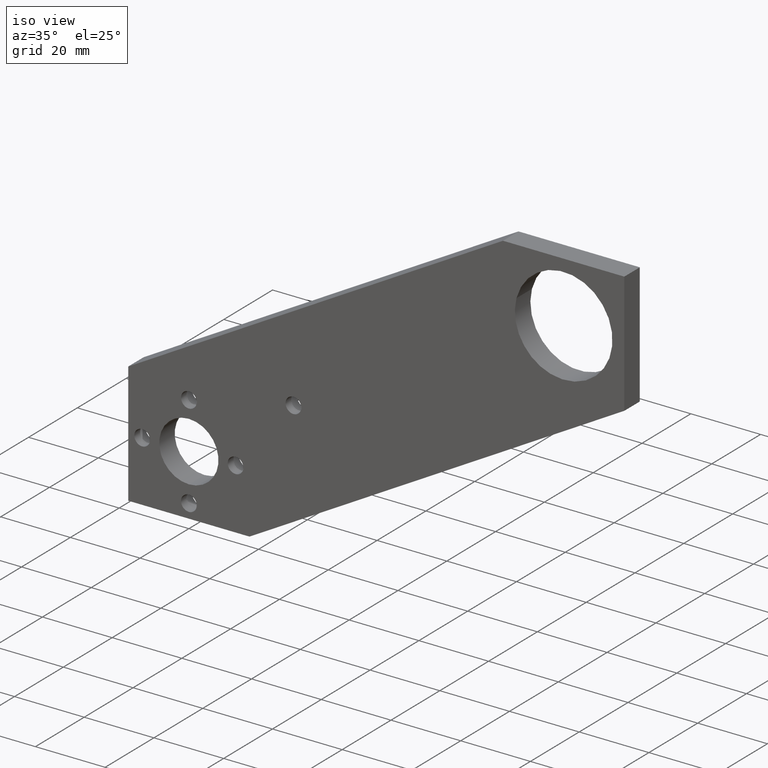
[diagram: clean part render]
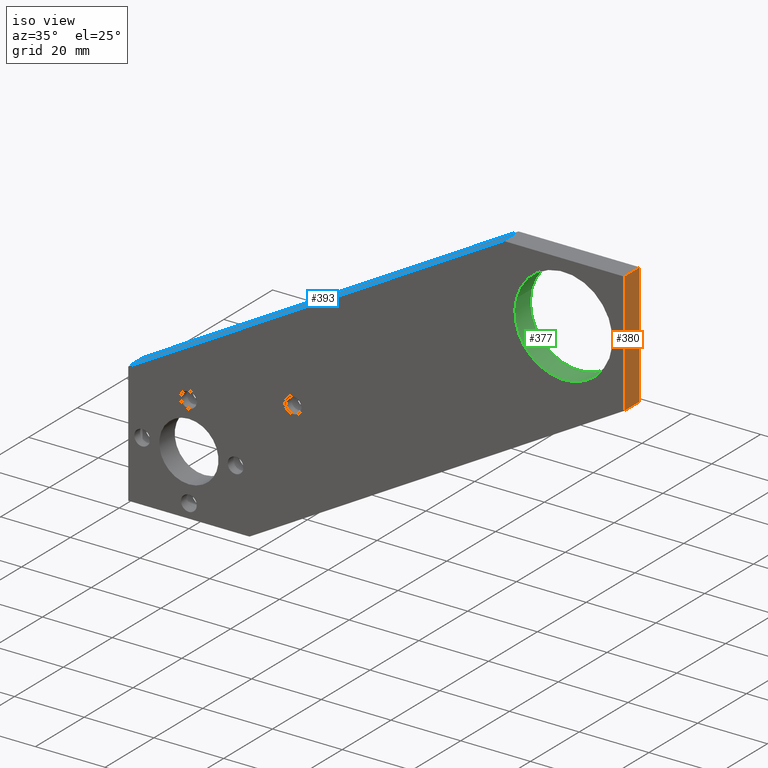
[diagram: same view with three faces highlighted in distinct colors, each labeled with its STEP entity id]
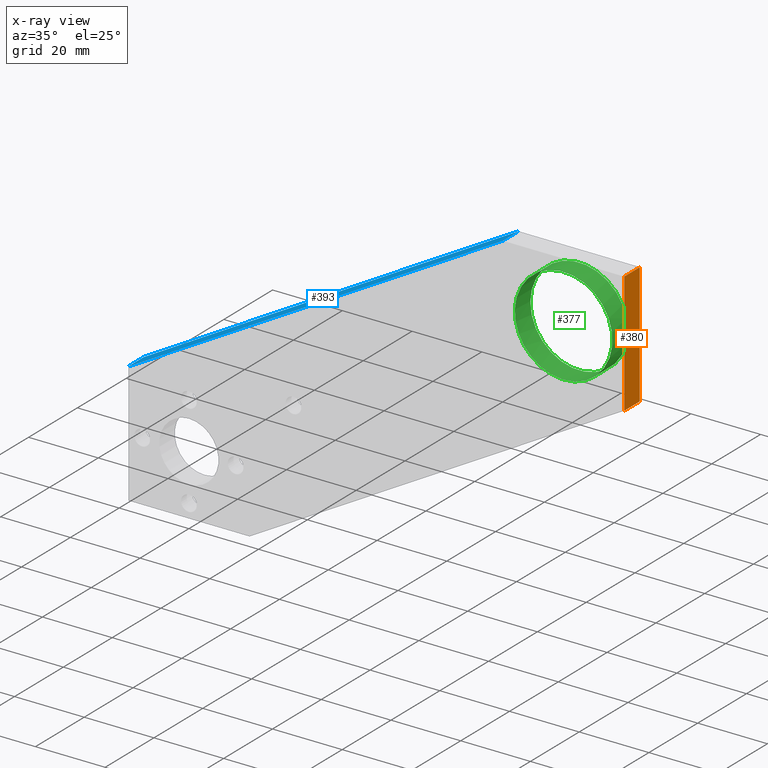
[diagram: x-ray of the same camera — body ghosted, the three highlighted faces saturated]
A machine part, iso view with three faces highlighted in distinct colors.
The next image is the same camera in x-ray (body ghosted, the three faces saturated) — at least one of them is partly hidden behind the body in this view.
Their STEP definitions:

[orange] entity #380 — the highlighted planar face has unit normal (1, 0, 0).
#22=LINE('',#594,#40);
#26=LINE('',#613,#44);
#27=LINE('',#616,#45);
#28=LINE('',#617,#46);
#40=VECTOR('',#473,10.);
#44=VECTOR('',#491,10.);
#45=VECTOR('',#494,10.);
#46=VECTOR('',#495,10.);
#56=PLANE('',#421);
#101=FACE_OUTER_BOUND('',#134,.T.);
#134=EDGE_LOOP('',(#300,#301,#302,#303));
#209=VERTEX_POINT('',#591);
#210=VERTEX_POINT('',#593);
#217=VERTEX_POINT('',#609);
#219=VERTEX_POINT('',#615);
#245=EDGE_CURVE('',#209,#210,#22,.T.);
#255=EDGE_CURVE('',#210,#217,#26,.T.);
#256=EDGE_CURVE('',#219,#217,#27,.T.);
#257=EDGE_CURVE('',#209,#219,#28,.T.);
#300=ORIENTED_EDGE('',*,*,#256,.T.);
#301=ORIENTED_EDGE('',*,*,#255,.F.);
#302=ORIENTED_EDGE('',*,*,#245,.F.);
#303=ORIENTED_EDGE('',*,*,#257,.T.);
#380=ADVANCED_FACE('',(#101),#56,.T.);
#421=AXIS2_PLACEMENT_3D('',#614,#492,#493);
#473=DIRECTION('',(0.,0.,1.));
#491=DIRECTION('',(0.,1.,0.));
#492=DIRECTION('center_axis',(1.,0.,0.));
#493=DIRECTION('ref_axis',(0.,0.,-1.));
#494=DIRECTION('',(0.,0.,1.));
#495=DIRECTION('',(0.,1.,0.));
#591=CARTESIAN_POINT('',(124.941888,0.,43.9795283106746));
#593=CARTESIAN_POINT('',(124.941888,0.,78.7795283106746));
#594=CARTESIAN_POINT('',(124.941888,0.,43.9795283106746));
#609=CARTESIAN_POINT('',(124.941888,6.35,78.7795283106746));
#613=CARTESIAN_POINT('',(124.941888,0.,78.7795283106746));
#614=CARTESIAN_POINT('Origin',(124.941888,0.,78.7795283106746));
#615=CARTESIAN_POINT('',(124.941888,6.35,43.9795283106746));
#616=CARTESIAN_POINT('',(124.941888,6.35,67.599619733006));
#617=CARTESIAN_POINT('',(124.941888,0.,43.9795283106746));

[blue] entity #393 — the highlighted planar face has unit normal (0.4957, 0, -0.8685).
#18=LINE('',#586,#36);
#25=LINE('',#612,#43);
#29=LINE('',#663,#47);
#33=LINE('',#670,#51);
#36=VECTOR('',#469,1000.);
#43=VECTOR('',#490,10.);
#47=VECTOR('',#552,1000.);
#51=VECTOR('',#558,1000.);
#58=PLANE('',#450);
#114=FACE_OUTER_BOUND('',#165,.T.);
#165=EDGE_LOOP('',(#339,#340,#341,#342));
#205=VERTEX_POINT('',#584);
#206=VERTEX_POINT('',#585);
#218=VERTEX_POINT('',#610);
#236=VERTEX_POINT('',#662);
#241=EDGE_CURVE('',#205,#206,#18,.T.);
#254=EDGE_CURVE('',#206,#218,#25,.T.);
#274=EDGE_CURVE('',#236,#218,#29,.T.);
#278=EDGE_CURVE('',#236,#205,#33,.T.);
#339=ORIENTED_EDGE('',*,*,#241,.T.);
#340=ORIENTED_EDGE('',*,*,#254,.T.);
#341=ORIENTED_EDGE('',*,*,#274,.F.);
#342=ORIENTED_EDGE('',*,*,#278,.T.);
#393=ADVANCED_FACE('',(#114),#58,.F.);
#450=AXIS2_PLACEMENT_3D('',#669,#556,#557);
#469=DIRECTION('',(0.868496911613889,0.,0.49569457785731));
#490=DIRECTION('',(0.,1.,0.));
#552=DIRECTION('',(0.868496911613889,0.,0.49569457785731));
#556=DIRECTION('center_axis',(0.49569457785731,0.,-0.868496911613889));
#557=DIRECTION('ref_axis',(-0.868496911613889,0.,-0.495694577857311));
#558=DIRECTION('',(0.,-1.,0.));
#584=CARTESIAN_POINT('',(-17.4,0.,17.4));
#585=CARTESIAN_POINT('',(90.141888,0.,78.7795283106746));
#586=CARTESIAN_POINT('',(-17.4,0.,17.4));
#610=CARTESIAN_POINT('',(90.141888,6.35,78.7795283106746));
#612=CARTESIAN_POINT('',(90.141888,0.,78.7795283106746));
#662=CARTESIAN_POINT('',(-17.4,6.35,17.4));
#663=CARTESIAN_POINT('',(-17.4,6.35,17.4));
#669=CARTESIAN_POINT('Origin',(-17.4,6.35,17.4));
#670=CARTESIAN_POINT('',(-17.4,6.35,17.4));

[green] entity #377 — the highlighted cylindrical surface (bore or boss wall) has radius 14 mm, axis along (0, 1, 0).
#67=FACE_BOUND('',#124,.T.);
#98=FACE_OUTER_BOUND('',#123,.T.);
#123=EDGE_LOOP('',(#281));
#124=EDGE_LOOP('',(#282));
#179=CIRCLE('',#411,14.);
#180=CIRCLE('',#412,14.);
#203=VERTEX_POINT('',#579);
#204=VERTEX_POINT('',#581);
#239=EDGE_CURVE('',#203,#203,#179,.T.);
#240=EDGE_CURVE('',#204,#204,#180,.T.);
#281=ORIENTED_EDGE('',*,*,#239,.F.);
#282=ORIENTED_EDGE('',*,*,#240,.F.);
#365=CYLINDRICAL_SURFACE('',#410,14.);
#377=ADVANCED_FACE('',(#98,#67),#365,.F.);
#410=AXIS2_PLACEMENT_3D('',#578,#461,#462);
#411=AXIS2_PLACEMENT_3D('',#580,#463,#464);
#412=AXIS2_PLACEMENT_3D('',#582,#465,#466);
#461=DIRECTION('center_axis',(0.,1.,0.));
#462=DIRECTION('ref_axis',(-1.,0.,0.));
#463=DIRECTION('center_axis',(0.,1.,0.));
#464=DIRECTION('ref_axis',(-1.,0.,0.));
#465=DIRECTION('center_axis',(0.,-1.,0.));
#466=DIRECTION('ref_axis',(-1.,0.,0.));
#578=CARTESIAN_POINT('Origin',(107.541888,0.,61.3795283106746));
#579=CARTESIAN_POINT('',(103.705750815427,0.,47.9153517112262));
#580=CARTESIAN_POINT('Origin',(107.541888,0.,61.3795283106746));
#581=CARTESIAN_POINT('',(93.9980251845734,6.35,64.9240705994484));
#582=CARTESIAN_POINT('Origin',(107.541888,6.35,61.3795283106746));